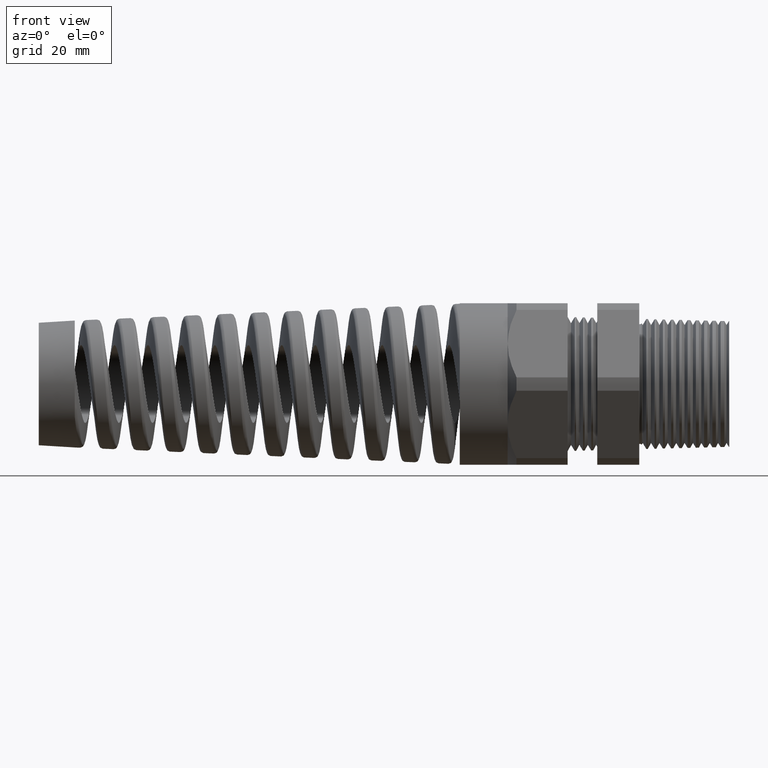
[diagram: clean part render]
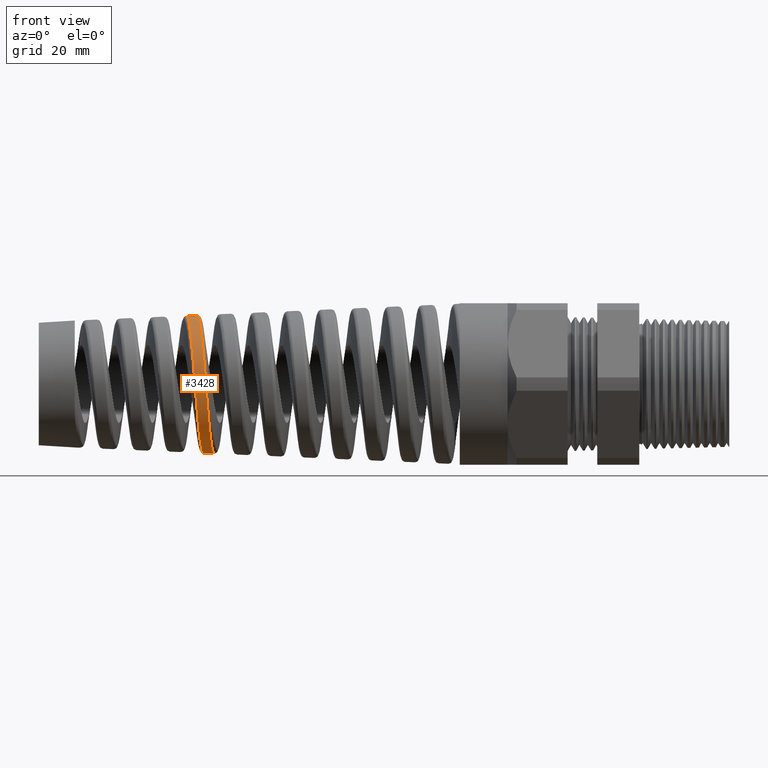
[diagram: same view with one face highlighted and labeled with its STEP entity id]
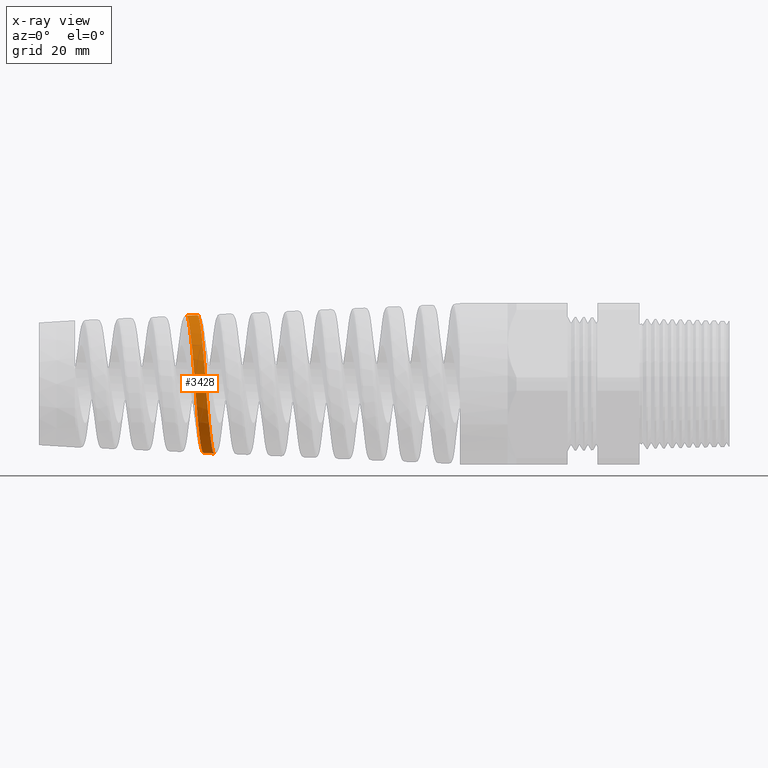
[diagram: x-ray of the same camera — body ghosted, the highlighted face saturated]
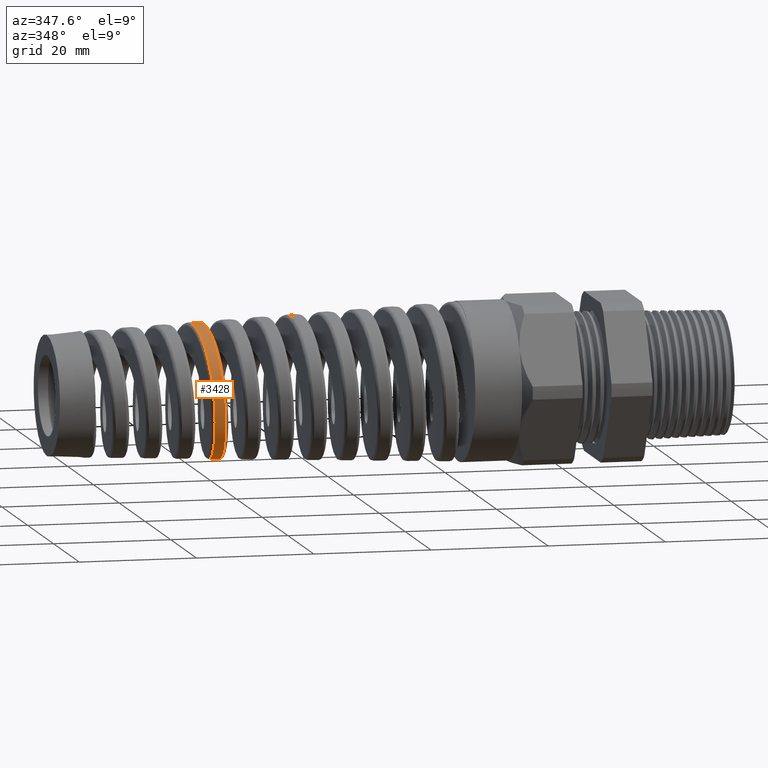
[diagram: same view with one face highlighted and labeled with its STEP entity id]
A machine part, front view. The second image highlights one B-rep face of the part: STEP entity #3428.
The next image is the same camera in x-ray: the body ghosted, the highlighted face saturated — about 0% of this face is hidden behind the body in this view.
A second angle (auxiliary view) of the same face is appended — the face is thin or edge-on in the first view.
In plain terms, the highlighted conical surface has half-angle 2.5 deg.
Its self-contained STEP definition (entity closure, byte-faithful):
#242 = DIRECTION ( 'NONE',  ( 0.0000000000000000000, 0.0000000000000000000, -1.000000000000000000 ) ) ;
#243 = DIRECTION ( 'NONE',  ( 1.000000000000000000, 0.0000000000000000000, 0.0000000000000000000 ) ) ;
#244 = CARTESIAN_POINT ( 'NONE',  ( -1.409999999999999900, 0.0000000000000000000, 0.0000000000000000000 ) ) ;
#245 = AXIS2_PLACEMENT_3D ( 'NONE', #244, #243, #242 ) ;
#247 = CONICAL_SURFACE ( 'NONE', #245, 0.5300000000000000300, 0.04363323129985853500 ) ;
#252 = FACE_OUTER_BOUND ( 'NONE', #3429, .T. ) ;
#985 = DIRECTION ( 'NONE',  ( 0.9990482215818576900, 0.0000000000000000000, -0.04361938736533629800 ) ) ;
#986 = VECTOR ( 'NONE', #985, 39.37007874015748100 ) ;
#987 = CARTESIAN_POINT ( 'NONE',  ( -1.409999999999999900, 0.0000000000000000000, -0.5300000000000000300 ) ) ;
#988 = CARTESIAN_POINT ( 'NONE',  ( -3.099333474539854200, 1.649464294440892300E-013, -0.4562421076146766500 ) ) ;
#989 = LINE ( 'NONE', #987, #986 ) ;
#1103 = CARTESIAN_POINT ( 'NONE',  ( -3.209163398026239700, 7.533378255966009400E-013, 0.4514468295956912700 ) ) ;
#1104 = CARTESIAN_POINT ( 'NONE',  ( -3.206847135735668700, -0.02995789776078239600, 0.4515479597913709100 ) ) ;
#1105 = CARTESIAN_POINT ( 'NONE',  ( -3.204567900269633000, -0.05944260694450492800, 0.4486947063788038200 ) ) ;
#1106 = CARTESIAN_POINT ( 'NONE',  ( -3.201132041726598500, -0.1029815000231469700, 0.4401528256078120500 ) ) ;
#1107 = CARTESIAN_POINT ( 'NONE',  ( -3.199984143927339500, -0.1173789394204644000, 0.4365899402990604000 ) ) ;
#1108 = CARTESIAN_POINT ( 'NONE',  ( -3.197672936265448600, -0.1459363441505492600, 0.4279981033432507200 ) ) ;
#1109 = CARTESIAN_POINT ( 'NONE',  ( -3.196508293977932300, -0.1601088296077780000, 0.4229533564700058100 ) ) ;
#1110 = CARTESIAN_POINT ( 'NONE',  ( -3.193055664482721900, -0.2013307949556247000, 0.4059426682121863900 ) ) ;
#1111 = CARTESIAN_POINT ( 'NONE',  ( -3.190785417663899000, -0.2274191955534342600, 0.3920342814690736500 ) ) ;
#1112 = CARTESIAN_POINT ( 'NONE',  ( -3.187349870692579100, -0.2644687292793929700, 0.3673439860734673500 ) ) ;
#1113 = CARTESIAN_POINT ( 'NONE',  ( -3.186194221475768800, -0.2765232308034532600, 0.3584257267338744600 ) ) ;
#1114 = CARTESIAN_POINT ( 'NONE',  ( -3.183886396902678100, -0.2996387488304144700, 0.3394729862560957900 ) ) ;
#1115 = CARTESIAN_POINT ( 'NONE',  ( -3.182740336116249800, -0.3106428684723330800, 0.3294954334560804000 ) ) ;
#1141 = CARTESIAN_POINT ( 'NONE',  ( -3.178859003881550300, -0.1165539911227358000, -0.4377604519488757500 ) ) ;
#1142 = CARTESIAN_POINT ( 'NONE',  ( -3.181150963213400300, -0.1448248207471750400, -0.4291319271262314400 ) ) ;
#1143 = CARTESIAN_POINT ( 'NONE',  ( -3.182309912183042000, -0.1588928574558490800, -0.4240708002628474400 ) ) ;
#1144 = CARTESIAN_POINT ( 'NONE',  ( -3.185754357139871700, -0.1998568161393911300, -0.4070140554092535100 ) ) ;
#1145 = CARTESIAN_POINT ( 'NONE',  ( -3.188021085528523400, -0.2257354744785127500, -0.3931265181821710400 ) ) ;
#1146 = CARTESIAN_POINT ( 'NONE',  ( -3.192579349683297700, -0.2746664358142955600, -0.3603932473927327100 ) ) ;
#1147 = CARTESIAN_POINT ( 'NONE',  ( -3.194892313446415800, -0.2978649351033314000, -0.3413354235980617900 ) ) ;
#1148 = CARTESIAN_POINT ( 'NONE',  ( -3.199457701966669500, -0.3394662205089190000, -0.2996930002375734500 ) ) ;
#1149 = CARTESIAN_POINT ( 'NONE',  ( -3.201729827270468000, -0.3581118648575403700, -0.2769997076477619400 ) ) ;
#1150 = CARTESIAN_POINT ( 'NONE',  ( -3.205182002005698500, -0.3827902192509394800, -0.2401078084000052000 ) ) ;
#1151 = CARTESIAN_POINT ( 'NONE',  ( -3.206343495949173200, -0.3904794842659725700, -0.2272872661497668500 ) ) ;
#1152 = CARTESIAN_POINT ( 'NONE',  ( -3.208638846107083200, -0.4044137953636540700, -0.2012280075954778200 ) ) ;
#1153 = CARTESIAN_POINT ( 'NONE',  ( -3.209778915837819400, -0.4107041559597547900, -0.1879298496797261200 ) ) ;
#1154 = CARTESIAN_POINT ( 'NONE',  ( -3.212056940565167600, -0.4219558691204919300, -0.1608073052883302600 ) ) ;
#1155 = CARTESIAN_POINT ( 'NONE',  ( -3.213194831912109500, -0.4269171980430903600, -0.1469829041148700600 ) ) ;
#1156 = CARTESIAN_POINT ( 'NONE',  ( -3.215480853877503300, -0.4354973148974568600, -0.1188035529755052400 ) ) ;
#1157 = CARTESIAN_POINT ( 'NONE',  ( -3.216632500182912100, -0.4391248797077977300, -0.1044040221816411000 ) ) ;
#1158 = CARTESIAN_POINT ( 'NONE',  ( -3.220098486800336600, -0.4478570554386908700, -0.06067346406961016800 ) ) ;
#1159 = CARTESIAN_POINT ( 'NONE',  ( -3.222378600093274600, -0.4507334653991302300, -0.03140297106070214000 ) ) ;
#1160 = CARTESIAN_POINT ( 'NONE',  ( -3.225813056817081300, -0.4507812703446388800, 0.01266738899078071400 ) ) ;
#1161 = CARTESIAN_POINT ( 'NONE',  ( -3.226959938758644500, -0.4500809186526633600, 0.02738517077662059500 ) ) ;
#1162 = CARTESIAN_POINT ( 'NONE',  ( -3.229265651692968300, -0.4472103222758984100, 0.05687689510730936000 ) ) ;
#1163 = CARTESIAN_POINT ( 'NONE',  ( -3.230425261342694500, -0.4450290803858983900, 0.07165098206110147300 ) ) ;
#1164 = CARTESIAN_POINT ( 'NONE',  ( -3.233866833299420000, -0.4364163376282843000, 0.1150808065921989600 ) ) ;
#1165 = CARTESIAN_POINT ( 'NONE',  ( -3.236137911769022800, -0.4279134490066824300, 0.1431841138222516300 ) ) ;
#1166 = CARTESIAN_POINT ( 'NONE',  ( -3.239582709143858700, -0.4110296447322598900, 0.1840619659770964800 ) ) ;
#1167 = CARTESIAN_POINT ( 'NONE',  ( -3.240743051109725000, -0.4046724997004754700, 0.1975388200348407500 ) ) ;
#1168 = CARTESIAN_POINT ( 'NONE',  ( -3.243058697579448900, -0.3906929171198284500, 0.2237173784819425100 ) ) ;
#1169 = CARTESIAN_POINT ( 'NONE',  ( -3.244209072015687800, -0.3831080513099779900, 0.2363667923008633500 ) ) ;
#1170 = CARTESIAN_POINT ( 'NONE',  ( -3.247651868231900400, -0.3586189370403599100, 0.2730316136267752500 ) ) ;
#1171 = CARTESIAN_POINT ( 'NONE',  ( -3.249932095193578200, -0.3399966761444212500, 0.2957761979737347800 ) ) ;
#1172 = CARTESIAN_POINT ( 'NONE',  ( -3.253399756849801400, -0.3085176368849484900, 0.3272632708673329800 ) ) ;
#1173 = CARTESIAN_POINT ( 'NONE',  ( -3.254558545394453900, -0.2974738704497694200, 0.3372613686270814500 ) ) ;
#1174 = CARTESIAN_POINT ( 'NONE',  ( -3.256856086185152800, -0.2746723726430034800, 0.3559506398199055500 ) ) ;
#1175 = CARTESIAN_POINT ( 'NONE',  ( -3.259144882777270400, -0.2510553615840649400, 0.3734372368058405100 ) ) ;
#1176 = CARTESIAN_POINT ( 'NONE',  ( -3.261439677065500300, -0.2258282961095967900, 0.3885461610689435700 ) ) ;
#1177 = CARTESIAN_POINT ( 'NONE',  ( -3.263748050042667000, -0.1997833534097507600, 0.4024457997422106200 ) ) ;
#1178 = CARTESIAN_POINT ( 'NONE',  ( -3.264915564584058400, -0.1862735004328975300, 0.4088201492958823400 ) ) ;
#1179 = CARTESIAN_POINT ( 'NONE',  ( -3.268391927693506700, -0.1451944691019945200, 0.4257606907071122500 ) ) ;
#1180 = CARTESIAN_POINT ( 'NONE',  ( -3.270674526054338800, -0.1170603401603544500, 0.4342221895824318600 ) ) ;
#1181 = CARTESIAN_POINT ( 'NONE',  ( -3.274118121291149700, -0.07376468550215564700, 0.4427491582504850000 ) ) ;
#1182 = CARTESIAN_POINT ( 'NONE',  ( -3.275269508540308700, -0.05914910751781911300, 0.4448923188070899000 ) ) ;
#1183 = CARTESIAN_POINT ( 'NONE',  ( -3.277592515982944200, -0.02953901451715656600, 0.4477323518831555800 ) ) ;
#1184 = CARTESIAN_POINT ( 'NONE',  ( -3.278750127133299500, -0.01472385628440082500, 0.4484086073889405600 ) ) ;
#1185 = CARTESIAN_POINT ( 'NONE',  ( -3.279901948676506400, -5.243479336734541100E-013, 0.4483583177743190600 ) ) ;
#1186 = B_SPLINE_CURVE_WITH_KNOTS ( 'NONE', 3,
 ( #1185, #1184, #1183, #1182, #1181, #1180, #1179, #1178, #1177, #1176, #1175, #1174, #1173, #1172, #1171, #1170, #1169, #1168, #1167, #1166, #1165, #1164, #1163, #1162, #1161, #1160, #1159, #1158, #1157, #1156, #1155, #1154, #1153, #1152, #1151, #1150, #1149, #1148, #1147, #1146, #1145, #1144, #1143, #1142, #1141, #1294, #1293, #1292, #1291 ),
 .UNSPECIFIED., .F., .F.,
 ( 4, 2, 2, 2, 2, 1, 2, 2, 2, 2, 2, 2, 2, 2, 2, 2, 2, 2, 2, 2, 2, 2, 2, 2, 4 ),
 ( 0.2327746210006949900, 0.2339131806428568500, 0.2350517402850186800, 0.2373288595693423800, 0.2384674192115042400, 0.2396059788536660800, 0.2407445384958279400, 0.2418830981379897800, 0.2441602174223134700, 0.2452987770644753100, 0.2464373367066371400, 0.2487144559909608400, 0.2498530156331226800, 0.2509915752752845400, 0.2532686945596082100, 0.2544072542017700700, 0.2555458138439318800, 0.2566843734860937400, 0.2578229331282556000, 0.2601000524125792700, 0.2623771716969029400, 0.2646542909812266100, 0.2657928506233884800, 0.2669314102655503400, 0.2692085295498740100 ),
 .UNSPECIFIED. ) ;
#1254 = CARTESIAN_POINT ( 'NONE',  ( -3.179308401983306000, -0.3420421491766464400, 0.2981042749818888500 ) ) ;
#1255 = CARTESIAN_POINT ( 'NONE',  ( -3.177028159199484200, -0.3608395988885477200, 0.2752461219499355300 ) ) ;
#1256 = CARTESIAN_POINT ( 'NONE',  ( -3.173566001026427900, -0.3857408812126092400, 0.2379854539377462300 ) ) ;
#1257 = CARTESIAN_POINT ( 'NONE',  ( -3.172410012406938800, -0.3934490800145892800, 0.2251086050135932300 ) ) ;
#1258 = CARTESIAN_POINT ( 'NONE',  ( -3.170121877014775400, -0.4074300653515600700, 0.1989153993124489500 ) ) ;
#1259 = CARTESIAN_POINT ( 'NONE',  ( -3.167845832690483900, -0.4200629759568875700, 0.1721562538577842100 ) ) ;
#1260 = CARTESIAN_POINT ( 'NONE',  ( -3.165568521429168200, -0.4300347580948867300, 0.1442820413767621200 ) ) ;
#1261 = CARTESIAN_POINT ( 'NONE',  ( -3.163278468330979800, -0.4386551734453556000, 0.1158425944122896400 ) ) ;
#1262 = CARTESIAN_POINT ( 'NONE',  ( -3.162120578950751600, -0.4423036383569329300, 0.1012571802401900600 ) ) ;
#1263 = CARTESIAN_POINT ( 'NONE',  ( -3.158667348095337800, -0.4509997410717416800, 0.05735223630905958400 ) ) ;
#1264 = CARTESIAN_POINT ( 'NONE',  ( -3.156392241472104400, -0.4538589767766400000, 0.02790728651619043800 ) ) ;
#1265 = CARTESIAN_POINT ( 'NONE',  ( -3.152968208501144300, -0.4538415005808449400, -0.01651264946222908200 ) ) ;
#1266 = CARTESIAN_POINT ( 'NONE',  ( -3.151825548989168400, -0.4531128215471050800, -0.03136172701793033700 ) ) ;
#1267 = CARTESIAN_POINT ( 'NONE',  ( -3.149523743522959900, -0.4501634798928586500, -0.06114639427822371500 ) ) ;
#1268 = CARTESIAN_POINT ( 'NONE',  ( -3.148375710197684400, -0.4479520000458929700, -0.07593785185601705000 ) ) ;
#1269 = CARTESIAN_POINT ( 'NONE',  ( -3.144955941863352100, -0.4392341979987141000, -0.1195672688451505500 ) ) ;
#1270 = CARTESIAN_POINT ( 'NONE',  ( -3.142693227141370100, -0.4306459753872387000, -0.1478587332940521400 ) ) ;
#1271 = CARTESIAN_POINT ( 'NONE',  ( -3.139256461451906100, -0.4135652338308172200, -0.1890884956195404100 ) ) ;
#1272 = CARTESIAN_POINT ( 'NONE',  ( -3.138098016364029500, -0.4071269905774114700, -0.2026941297238270000 ) ) ;
#1273 = CARTESIAN_POINT ( 'NONE',  ( -3.135802363771818900, -0.3930690827893747500, -0.2289653297373948900 ) ) ;
#1274 = CARTESIAN_POINT ( 'NONE',  ( -3.134661744564792000, -0.3854393920152552300, -0.2416751527581629800 ) ) ;
#1275 = CARTESIAN_POINT ( 'NONE',  ( -3.131249894752318900, -0.3607890913045785900, -0.2785552838876441700 ) ) ;
#1276 = CARTESIAN_POINT ( 'NONE',  ( -3.128988699383280700, -0.3420242888399226400, -0.3014883503205236200 ) ) ;
#1277 = CARTESIAN_POINT ( 'NONE',  ( -3.124388995958931000, -0.2996461503428440900, -0.3439052140071343100 ) ) ;
#1278 = CARTESIAN_POINT ( 'NONE',  ( -3.122123917479044100, -0.2767148327881242000, -0.3627026338295066800 ) ) ;
#1279 = CARTESIAN_POINT ( 'NONE',  ( -3.118714478462805600, -0.2398628382595096600, -0.3873885161101679500 ) ) ;
#1280 = CARTESIAN_POINT ( 'NONE',  ( -3.117576002141529700, -0.2271641349202982400, -0.3950303117650048000 ) ) ;
#1281 = CARTESIAN_POINT ( 'NONE',  ( -3.115285752342128700, -0.2009200412659951600, -0.4091145591482036600 ) ) ;
#1282 = CARTESIAN_POINT ( 'NONE',  ( -3.114129802473522000, -0.1873214401980322600, -0.4155718066534330700 ) ) ;
#1283 = CARTESIAN_POINT ( 'NONE',  ( -3.110703526912161500, -0.1461008246937602600, -0.4327175681025676700 ) ) ;
#1284 = CARTESIAN_POINT ( 'NONE',  ( -3.108451624828682200, -0.1178216126570104700, -0.4413513573194463600 ) ) ;
#1285 = CARTESIAN_POINT ( 'NONE',  ( -3.105046185268781800, -0.07422445921438687600, -0.4501553717552717000 ) ) ;
#1286 = CARTESIAN_POINT ( 'NONE',  ( -3.103904060505349200, -0.05946203157100308400, -0.4523973169638051400 ) ) ;
#1287 = CARTESIAN_POINT ( 'NONE',  ( -3.101608933172078900, -0.02966471598331513900, -0.4554234051516400900 ) ) ;
#1288 = CARTESIAN_POINT ( 'NONE',  ( -3.100469758830012500, -0.01481061220878932300, -0.4561924963711617200 ) ) ;
#1289 = CARTESIAN_POINT ( 'NONE',  ( -3.099333474539854200, 1.649464294440892300E-013, -0.4562421076146766500 ) ) ;
#1290 = B_SPLINE_CURVE_WITH_KNOTS ( 'NONE', 3,
 ( #1289, #1288, #1287, #1286, #1285, #1284, #1283, #1282, #1281, #1280, #1279, #1278, #1277, #1276, #1275, #1274, #1273, #1272, #1271, #1270, #1269, #1268, #1267, #1266, #1265, #1264, #1263, #1262, #1261, #1260, #1259, #1258, #1257, #1256, #1255, #1254, #1115, #1114, #1113, #1112, #1111, #1110, #1109, #1108, #1107, #1106, #1105, #1104, #1103 ),
 .UNSPECIFIED., .F., .F.,
 ( 4, 2, 2, 2, 2, 2, 2, 2, 2, 2, 2, 2, 2, 2, 2, 1, 2, 2, 2, 2, 2, 2, 2, 2, 4 ),
 ( 0.5816071111002731900, 0.5827508206319801400, 0.5838945301636869800, 0.5861819492271008700, 0.5873256587588078200, 0.5884693682905146600, 0.5907567873539285600, 0.5930442064173423500, 0.5941879159490492900, 0.5953316254807561300, 0.5976190445441700300, 0.5987627540758769800, 0.5999064636075838200, 0.6021938826709977200, 0.6033375922027045500, 0.6044813017344115000, 0.6056250112661184500, 0.6067687207978252900, 0.6090561398612391900, 0.6101998493929461400, 0.6113435589246529700, 0.6136309779880668700, 0.6147746875197738200, 0.6159183970514807700, 0.6182058161148945600 ),
 .UNSPECIFIED. ) ;
#1291 = CARTESIAN_POINT ( 'NONE',  ( -3.169743484371567700, 9.935876724003221600E-016, -0.4531679401952263800 ) ) ;
#1292 = CARTESIAN_POINT ( 'NONE',  ( -3.172042172717039100, -0.02974512313581354600, -0.4530675772946103400 ) ) ;
#1293 = CARTESIAN_POINT ( 'NONE',  ( -3.174311330189909100, -0.05910793578373045600, -0.4500544247829526600 ) ) ;
#1294 = CARTESIAN_POINT ( 'NONE',  ( -3.177720533559386800, -0.1022880953882354300, -0.4413596631090560000 ) ) ;
#1912 = CARTESIAN_POINT ( 'NONE',  ( -3.169743484371567700, 9.935876724003221600E-016, -0.4531679401952263800 ) ) ;
#2024 = CARTESIAN_POINT ( 'NONE',  ( -3.209163398026239700, 7.533378255966009400E-013, 0.4514468295956912700 ) ) ;
#2072 = CARTESIAN_POINT ( 'NONE',  ( -3.279901948676506400, -5.243479336734541100E-013, 0.4483583177743190600 ) ) ;
#2515 = DIRECTION ( 'NONE',  ( 0.9990482215818576900, 5.341834311772759500E-018, 0.04361938736533629800 ) ) ;
#2516 = LINE ( 'NONE', #2518, #2517 ) ;
#2517 = VECTOR ( 'NONE', #2515, 39.37007874015748100 ) ;
#2518 = CARTESIAN_POINT ( 'NONE',  ( -1.409999999999999900, 6.490628035480972400E-017, 0.5300000000000000300 ) ) ;
#3121 = EDGE_CURVE ( 'NONE', #3286, #3287, #2516, .T. ) ;
#3131 = VERTEX_POINT ( 'NONE', #988 ) ;
#3133 = EDGE_CURVE ( 'NONE', #3296, #3131, #989, .T. ) ;
#3158 = ORIENTED_EDGE ( 'NONE', *, *, #3159, .T. ) ;
#3159 = EDGE_CURVE ( 'NONE', #3286, #3296, #1186, .T. ) ;
#3160 = ORIENTED_EDGE ( 'NONE', *, *, #3133, .T. ) ;
#3161 = ORIENTED_EDGE ( 'NONE', *, *, #3162, .T. ) ;
#3162 = EDGE_CURVE ( 'NONE', #3131, #3287, #1290, .T. ) ;
#3286 = VERTEX_POINT ( 'NONE', #2072 ) ;
#3287 = VERTEX_POINT ( 'NONE', #2024 ) ;
#3296 = VERTEX_POINT ( 'NONE', #1912 ) ;
#3428 = ADVANCED_FACE ( 'NONE', ( #252 ), #247, .T. ) ;
#3429 = EDGE_LOOP ( 'NONE', ( #3430, #3158, #3160, #3161 ) ) ;
#3430 = ORIENTED_EDGE ( 'NONE', *, *, #3121, .F. ) ;